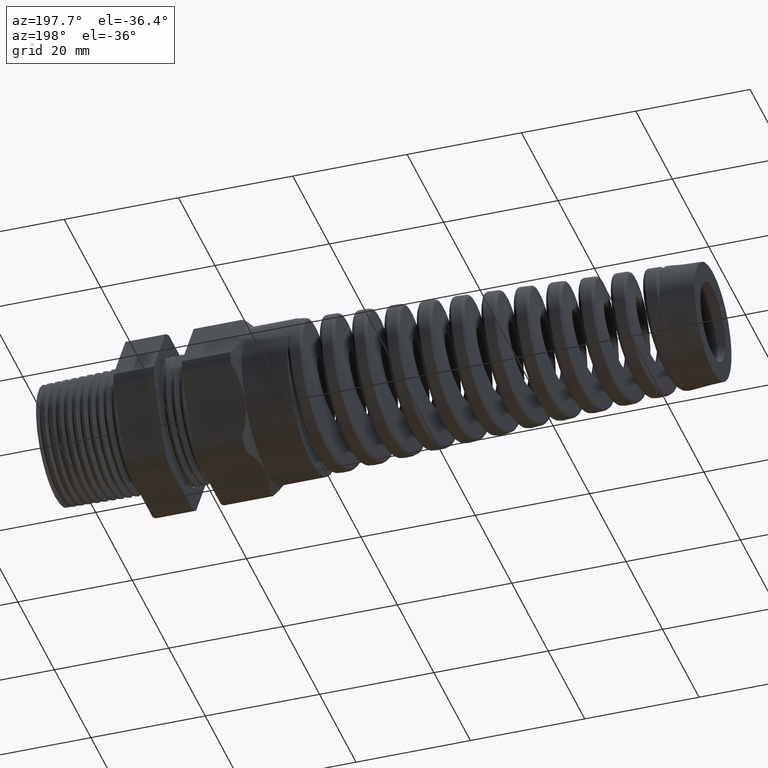
[diagram: clean part render]
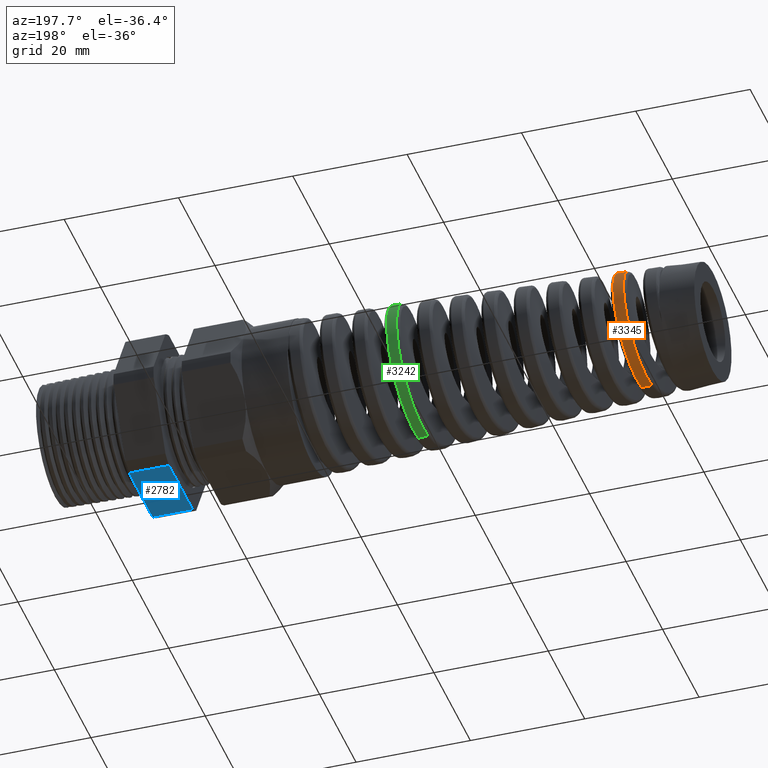
[diagram: same view with three faces highlighted in distinct colors, each labeled with its STEP entity id]
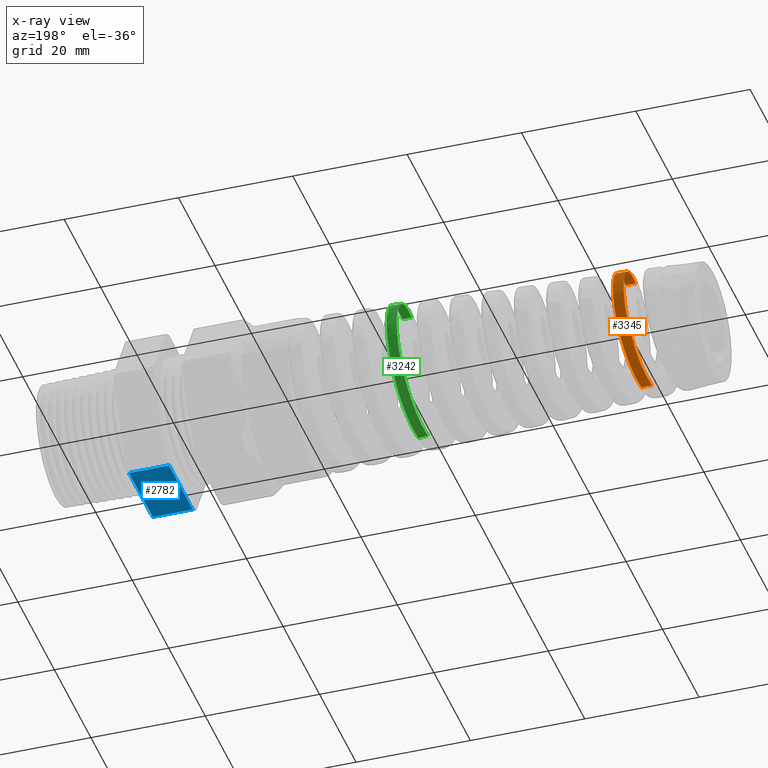
[diagram: x-ray of the same camera — body ghosted, the three highlighted faces saturated]
A machine part, auxiliary view with three faces highlighted in distinct colors.
The next image is the same camera in x-ray (body ghosted, the three faces saturated) — at least one of them is partly hidden behind the body in this view.
Their STEP definitions:

[orange] entity #3345 — the highlighted conical surface has half-angle 2.5 deg.
#1628 = DIRECTION ( 'NONE',  ( 0.9990482215818576900, 0.0000000000000000000, -0.04361938736533629800 ) ) ;
#1629 = VECTOR ( 'NONE', #1628, 39.37007874015748100 ) ;
#1630 = CARTESIAN_POINT ( 'NONE',  ( -1.409999999999999900, 0.0000000000000000000, -0.5300000000000000300 ) ) ;
#1631 = LINE ( 'NONE', #1630, #1629 ) ;
#1632 = CARTESIAN_POINT ( 'NONE',  ( -3.758332060745155400, 4.795377097128828500E-016, -0.4274696079655765900 ) ) ;
#1633 = CARTESIAN_POINT ( 'NONE',  ( -3.757188375584939300, 0.01400494226474427300, -0.4275195423380621600 ) ) ;
#1634 = CARTESIAN_POINT ( 'NONE',  ( -3.756043893642880600, 0.02802619152402364600, -0.4268829494566397900 ) ) ;
#1635 = CARTESIAN_POINT ( 'NONE',  ( -3.753740690579493200, 0.05610092792465391800, -0.4242089211008324700 ) ) ;
#1636 = CARTESIAN_POINT ( 'NONE',  ( -3.752576914043245400, 0.07021414439298170900, -0.4221540205707369800 ) ) ;
#1637 = CARTESIAN_POINT ( 'NONE',  ( -3.749118222706081700, 0.1117275020499396000, -0.4139889844316627700 ) ) ;
#1638 = CARTESIAN_POINT ( 'NONE',  ( -3.746835861285643600, 0.1385445949005433800, -0.4058987860999186400 ) ) ;
#1639 = CARTESIAN_POINT ( 'NONE',  ( -3.742241801992131300, 0.1904787648338106000, -0.3844970683892806600 ) ) ;
#1640 = CARTESIAN_POINT ( 'NONE',  ( -3.648503693373831100, -5.087926670709558600E-013, 0.4322648180431111200 ) ) ;
#1641 = DIRECTION ( 'NONE',  ( 0.9990482215818576900, 5.341834311772759500E-018, 0.04361938736533629800 ) ) ;
#1642 = VECTOR ( 'NONE', #1641, 39.37007874015748100 ) ;
#1643 = CARTESIAN_POINT ( 'NONE',  ( -1.409999999999999900, 6.490628035480972400E-017, 0.5300000000000000300 ) ) ;
#1648 = LINE ( 'NONE', #1643, #1642 ) ;
#1781 = CARTESIAN_POINT ( 'NONE',  ( -3.739917816255521100, 0.2157471594129809500, -0.3710240535705322500 ) ) ;
#1782 = CARTESIAN_POINT ( 'NONE',  ( -3.735344502820534500, 0.2624260536067194400, -0.3398666247093832200 ) ) ;
#1783 = CARTESIAN_POINT ( 'NONE',  ( -3.733072657904383400, 0.2841050086479168200, -0.3221129474856678200 ) ) ;
#1784 = CARTESIAN_POINT ( 'NONE',  ( -3.729615309461891600, 0.3140793900132024500, -0.2921599076022851600 ) ) ;
#1785 = CARTESIAN_POINT ( 'NONE',  ( -3.728453298973669000, 0.3236472924899924700, -0.2815989575546020100 ) ) ;
#1786 = CARTESIAN_POINT ( 'NONE',  ( -3.726153618718246000, 0.3415035080814128300, -0.2598211116389071400 ) ) ;
#1787 = CARTESIAN_POINT ( 'NONE',  ( -3.725009520114248100, 0.3498499346382711300, -0.2485504226437828000 ) ) ;
#1788 = CARTESIAN_POINT ( 'NONE',  ( -3.722724268780486700, 0.3653987721470649000, -0.2252590277197482900 ) ) ;
#1789 = CARTESIAN_POINT ( 'NONE',  ( -3.721583710699166900, 0.3726011699495063200, -0.2132382549282643100 ) ) ;
#1790 = CARTESIAN_POINT ( 'NONE',  ( -3.719295051641162700, 0.3858481658929770500, -0.1884386864190324100 ) ) ;
#1791 = CARTESIAN_POINT ( 'NONE',  ( -3.718141421412132400, 0.3919172389564312700, -0.1755987723137358300 ) ) ;
#1792 = CARTESIAN_POINT ( 'NONE',  ( -3.714687168139751500, 0.4081381000362646100, -0.1363389476519790100 ) ) ;
#1793 = CARTESIAN_POINT ( 'NONE',  ( -3.712418102474486700, 0.4162280755016341000, -0.1094906349767144800 ) ) ;
#1794 = CARTESIAN_POINT ( 'NONE',  ( -3.708993960485652300, 0.4244008289815005600, -0.06824204473662713600 ) ) ;
#1795 = CARTESIAN_POINT ( 'NONE',  ( -3.707849349613552300, 0.4264599524141913800, -0.05432863686403405200 ) ) ;
#1796 = CARTESIAN_POINT ( 'NONE',  ( -3.705543389308517000, 0.4292104135989933700, -0.02616566908292389900 ) ) ;
#1797 = CARTESIAN_POINT ( 'NONE',  ( -3.704385766185676100, 0.4298886154163139600, -0.01196145936708104900 ) ) ;
#1798 = CARTESIAN_POINT ( 'NONE',  ( -3.700950411913653600, 0.4298321897530453200, 0.03023193763143227100 ) ) ;
#1799 = CARTESIAN_POINT ( 'NONE',  ( -3.698688486946650800, 0.4270597684995762800, 0.05809926371948792600 ) ) ;
#1800 = CARTESIAN_POINT ( 'NONE',  ( -3.695262527601237400, 0.4187954250325983100, 0.09950130942634578800 ) ) ;
#1801 = CARTESIAN_POINT ( 'NONE',  ( -3.694108612457400700, 0.4153264782651214200, 0.1133101384732015500 ) ) ;
#1802 = CARTESIAN_POINT ( 'NONE',  ( -3.691813322155643300, 0.4070889725745487400, 0.1403570049329315500 ) ) ;
#1803 = CARTESIAN_POINT ( 'NONE',  ( -3.690672918861830800, 0.4023335954714611900, 0.1535857487082038500 ) ) ;
#1804 = CARTESIAN_POINT ( 'NONE',  ( -3.687256377679482900, 0.3862083247515442600, 0.1924099124701051700 ) ) ;
#1805 = CARTESIAN_POINT ( 'NONE',  ( -3.684984373050861400, 0.3729971094822205300, 0.2171514826718438100 ) ) ;
#1806 = CARTESIAN_POINT ( 'NONE',  ( -3.681530814125457700, 0.3493672774588949500, 0.2524908151231820000 ) ) ;
#1807 = CARTESIAN_POINT ( 'NONE',  ( -3.680382163118776100, 0.3409108092610608200, 0.2638726836127053800 ) ) ;
#1808 = CARTESIAN_POINT ( 'NONE',  ( -3.678104548063549900, 0.3230702625579756100, 0.2855876097024513400 ) ) ;
#1809 = CARTESIAN_POINT ( 'NONE',  ( -3.675838010205122200, 0.3042434383986213400, 0.3063425763650677900 ) ) ;
#1810 = CARTESIAN_POINT ( 'NONE',  ( -3.673568734738377200, 0.2834667302174873100, 0.3251968889773007000 ) ) ;
#1811 = CARTESIAN_POINT ( 'NONE',  ( -3.671286080478709300, 0.2616985560708539600, 0.3430834049696673300 ) ) ;
#1812 = CARTESIAN_POINT ( 'NONE',  ( -3.670131903133830900, 0.2502535291070065400, 0.3515819780505617900 ) ) ;
#1813 = CARTESIAN_POINT ( 'NONE',  ( -3.666696480422178000, 0.2150445032810982800, 0.3751266350432231300 ) ) ;
#1814 = CARTESIAN_POINT ( 'NONE',  ( -3.664431451292233400, 0.1903403971790234300, 0.3883429273141322800 ) ) ;
#1815 = CARTESIAN_POINT ( 'NONE',  ( -3.659881890005455900, 0.1385208373324138500, 0.4099062885049016800 ) ) ;
#1816 = CARTESIAN_POINT ( 'NONE',  ( -3.657578996436924100, 0.1111347924308908200, 0.4182681830663149700 ) ) ;
#1817 = CARTESIAN_POINT ( 'NONE',  ( -3.653039765616004100, 0.05606596227446204000, 0.4293332549060776000 ) ) ;
#1818 = CARTESIAN_POINT ( 'NONE',  ( -3.650786333604422400, 0.02819922231569264900, 0.4321651558183558500 ) ) ;
#1819 = CARTESIAN_POINT ( 'NONE',  ( -3.648503693373831100, -5.087926670709558600E-013, 0.4322648180431111200 ) ) ;
#1820 = B_SPLINE_CURVE_WITH_KNOTS ( 'NONE', 3,
 ( #1819, #1818, #1817, #1816, #1815, #1814, #1813, #1812, #1811, #1810, #1809, #1808, #1807, #1806, #1805, #1804, #1803, #1802, #1801, #1800, #1799, #1798, #1797, #1796, #1795, #1794, #1793, #1792, #1791, #1790, #1789, #1788, #1787, #1786, #1785, #1784, #1783, #1782, #1781, #1639, #1638, #1637, #1636, #1635, #1634, #1633, #1632 ),
 .UNSPECIFIED., .F., .F.,
 ( 4, 2, 2, 2, 2, 1, 2, 2, 2, 2, 2, 2, 2, 2, 2, 2, 2, 2, 2, 2, 2, 2, 2, 4 ),
 ( 0.7607264574887501200, 0.7628929269226795200, 0.7650593963566089100, 0.7672258657905383100, 0.7683091005075030100, 0.7693923352244677000, 0.7704755699414322900, 0.7715588046583969900, 0.7737252740923263900, 0.7748085088092910900, 0.7758917435262557800, 0.7780582129601851800, 0.7791414476771498800, 0.7802246823941145800, 0.7823911518280439700, 0.7834743865450086700, 0.7845576212619733700, 0.7856408559789380700, 0.7867240906959026600, 0.7888905601298320500, 0.7910570295637614500, 0.7932234989976908500, 0.7943067337146555400, 0.7953899684316202400 ),
 .UNSPECIFIED. ) ;
#1821 = CARTESIAN_POINT ( 'NONE',  ( -3.758332060745155400, 4.795377097128828500E-016, -0.4274696079655765900 ) ) ;
#2238 = DIRECTION ( 'NONE',  ( 0.0000000000000000000, 0.0000000000000000000, -1.000000000000000000 ) ) ;
#2239 = DIRECTION ( 'NONE',  ( 1.000000000000000000, 0.0000000000000000000, 0.0000000000000000000 ) ) ;
#2240 = CARTESIAN_POINT ( 'NONE',  ( -1.409999999999999900, 0.0000000000000000000, 0.0000000000000000000 ) ) ;
#2241 = AXIS2_PLACEMENT_3D ( 'NONE', #2240, #2239, #2238 ) ;
#2360 = CONICAL_SURFACE ( 'NONE', #2241, 0.5300000000000000300, 0.04363323129985853500 ) ;
#2361 = FACE_OUTER_BOUND ( 'NONE', #3346, .T. ) ;
#3089 = EDGE_CURVE ( 'NONE', #3090, #3091, #14632, .T. ) ;
#3090 = VERTEX_POINT ( 'NONE', #14633 ) ;
#3091 = VERTEX_POINT ( 'NONE', #14631 ) ;
#3092 = ORIENTED_EDGE ( 'NONE', *, *, #3233, .T. ) ;
#3233 = EDGE_CURVE ( 'NONE', #3091, #3234, #1648, .T. ) ;
#3234 = VERTEX_POINT ( 'NONE', #1640 ) ;
#3235 = ORIENTED_EDGE ( 'NONE', *, *, #3236, .T. ) ;
#3236 = EDGE_CURVE ( 'NONE', #3234, #3237, #1820, .T. ) ;
#3237 = VERTEX_POINT ( 'NONE', #1821 ) ;
#3238 = ORIENTED_EDGE ( 'NONE', *, *, #3239, .F. ) ;
#3239 = EDGE_CURVE ( 'NONE', #3090, #3237, #1631, .T. ) ;
#3345 = ADVANCED_FACE ( 'NONE', ( #2361 ), #2360, .T. ) ;
#3346 = EDGE_LOOP ( 'NONE', ( #3347, #3092, #3235, #3238 ) ) ;
#3347 = ORIENTED_EDGE ( 'NONE', *, *, #3089, .T. ) ;
#14584 = CARTESIAN_POINT ( 'NONE',  ( -3.720578933389992600, 2.741245208537216600E-015, 0.4291179451036481500 ) ) ;
#14585 = CARTESIAN_POINT ( 'NONE',  ( -3.722848030818363800, 0.02780601998158386800, 0.4290188741703739300 ) ) ;
#14586 = CARTESIAN_POINT ( 'NONE',  ( -3.725115342637311100, 0.05558634904280819500, 0.4262351315204491700 ) ) ;
#14587 = CARTESIAN_POINT ( 'NONE',  ( -3.729723282317614100, 0.1108309665472095900, 0.4151026146289127400 ) ) ;
#14588 = CARTESIAN_POINT ( 'NONE',  ( -3.731995388368236200, 0.1374648769303165300, 0.4069294730580014800 ) ) ;
#14589 = CARTESIAN_POINT ( 'NONE',  ( -3.735414957804352700, 0.1759846297524953500, 0.3909085493472986300 ) ) ;
#14590 = CARTESIAN_POINT ( 'NONE',  ( -3.736556287390140300, 0.1885843355614548700, 0.3849368210127900300 ) ) ;
#14591 = CARTESIAN_POINT ( 'NONE',  ( -3.738850289786021600, 0.2132912584537520800, 0.3717007360408454700 ) ) ;
#14592 = CARTESIAN_POINT ( 'NONE',  ( -3.740006295424410900, 0.2254221815599011000, 0.3644110385542040400 ) ) ;
#14593 = CARTESIAN_POINT ( 'NONE',  ( -3.743437320553423500, 0.2602821829579215500, 0.3410605169099576500 ) ) ;
#14594 = CARTESIAN_POINT ( 'NONE',  ( -3.745700110118714800, 0.2817607823418232800, 0.3234055908847338100 ) ) ;
#14595 = CARTESIAN_POINT ( 'NONE',  ( -3.749129096484213000, 0.3113512413863248600, 0.2938178201556894100 ) ) ;
#14596 = CARTESIAN_POINT ( 'NONE',  ( -3.750281889693358700, 0.3208052745392686000, 0.2833951435450278700 ) ) ;
#14597 = CARTESIAN_POINT ( 'NONE',  ( -3.752591664009485400, 0.3386538993013153400, 0.2616411461022035100 ) ) ;
#14598 = CARTESIAN_POINT ( 'NONE',  ( -3.753738565991543700, 0.3469742566959341200, 0.2504086280653811700 ) ) ;
#14599 = CARTESIAN_POINT ( 'NONE',  ( -3.757169300187687400, 0.3701783565139289400, 0.2156780962292918500 ) ) ;
#14600 = CARTESIAN_POINT ( 'NONE',  ( -3.759439495632646000, 0.3833218598895488700, 0.1911565832445638900 ) ) ;
#14601 = CARTESIAN_POINT ( 'NONE',  ( -3.762888927047209900, 0.3994604156784011300, 0.1522776238457922700 ) ) ;
#14602 = CARTESIAN_POINT ( 'NONE',  ( -3.764045967617254600, 0.4042276096463054400, 0.1389686977490640600 ) ) ;
#14603 = CARTESIAN_POINT ( 'NONE',  ( -3.766337269576340400, 0.4123482883393500600, 0.1122304767726819300 ) ) ;
#14604 = CARTESIAN_POINT ( 'NONE',  ( -3.768618695133686600, 0.4191197897054382300, 0.08522787332077001700 ) ) ;
#14605 = CARTESIAN_POINT ( 'NONE',  ( -3.770903469669996300, 0.4232330187760735000, 0.05770627723356586100 ) ) ;
#14606 = CARTESIAN_POINT ( 'NONE',  ( -3.773200334372250400, 0.4259990941174262600, 0.02992254102867182900 ) ) ;
#14607 = CARTESIAN_POINT ( 'NONE',  ( -3.774360731507543100, 0.4267074884294839700, 0.01582751631322160800 ) ) ;
#14608 = CARTESIAN_POINT ( 'NONE',  ( -3.777829366544581900, 0.4267317914785385700, -0.02631659949038361900 ) ) ;
#14609 = CARTESIAN_POINT ( 'NONE',  ( -3.780104441073842500, 0.4239997174405346600, -0.05401370538931693500 ) ) ;
#14610 = CARTESIAN_POINT ( 'NONE',  ( -3.783532929714850100, 0.4158905599938346200, -0.09497120074621227800 ) ) ;
#14611 = CARTESIAN_POINT ( 'NONE',  ( -3.784678577405374200, 0.4125142159558102300, -0.1085249576956297100 ) ) ;
#14612 = CARTESIAN_POINT ( 'NONE',  ( -3.786988306060985900, 0.4043747243778840200, -0.1354280361775116200 ) ) ;
#14613 = CARTESIAN_POINT ( 'NONE',  ( -3.788146694473905300, 0.3996246256221083800, -0.1487078245555345200 ) ) ;
#14614 = CARTESIAN_POINT ( 'NONE',  ( -3.791593186162679700, 0.3836058008056218400, -0.1873942939380680300 ) ) ;
#14615 = CARTESIAN_POINT ( 'NONE',  ( -3.793875612724753000, 0.3705104428978230300, -0.2119181681654594100 ) ) ;
#14616 = CARTESIAN_POINT ( 'NONE',  ( -3.797333615227934400, 0.3472280994294973900, -0.2467900470955413400 ) ) ;
#14617 = CARTESIAN_POINT ( 'NONE',  ( -3.798497819345617400, 0.3388040978168611600, -0.2581521624735956800 ) ) ;
#14618 = CARTESIAN_POINT ( 'NONE',  ( -3.800807165242161100, 0.3210003949947681200, -0.2798279183853296700 ) ) ;
#14619 = CARTESIAN_POINT ( 'NONE',  ( -3.801953526874092500, 0.3116229859337744100, -0.2901554526424506300 ) ) ;
#14620 = CARTESIAN_POINT ( 'NONE',  ( -3.805387138246730100, 0.2820997079214503400, -0.3196429632999414600 ) ) ;
#14621 = CARTESIAN_POINT ( 'NONE',  ( -3.807668931483131600, 0.2605762958817231000, -0.3373223700059581100 ) ) ;
#14622 = CARTESIAN_POINT ( 'NONE',  ( -3.812315515235074500, 0.2137119466621694200, -0.3685662236027386600 ) ) ;
#14623 = CARTESIAN_POINT ( 'NONE',  ( -3.814615721638427100, 0.1890234602669793600, -0.3816787256720782800 ) ) ;
#14624 = CARTESIAN_POINT ( 'NONE',  ( -3.818062306546799800, 0.1504612706813865700, -0.3975703456160632500 ) ) ;
#14625 = CARTESIAN_POINT ( 'NONE',  ( -3.819211163027164300, 0.1373352677522180800, -0.4022434886857347800 ) ) ;
#14626 = CARTESIAN_POINT ( 'NONE',  ( -3.821520555335665500, 0.1105288861516624000, -0.4103151322357948000 ) ) ;
#14627 = CARTESIAN_POINT ( 'NONE',  ( -3.822686451519887700, 0.09678617351417297100, -0.4137202449011717600 ) ) ;
#14628 = CARTESIAN_POINT ( 'NONE',  ( -3.826150176095001900, 0.05556464103283983300, -0.4217869648721843700 ) ) ;
#14629 = CARTESIAN_POINT ( 'NONE',  ( -3.828433504350723800, 0.02788061858970472900, -0.4244089128385552500 ) ) ;
#14630 = CARTESIAN_POINT ( 'NONE',  ( -3.830738846142130300, -6.982901073031880300E-013, -0.4243082594421703800 ) ) ;
#14631 = CARTESIAN_POINT ( 'NONE',  ( -3.720578933389992600, 2.741245208537216600E-015, 0.4291179451036481500 ) ) ;
#14632 = B_SPLINE_CURVE_WITH_KNOTS ( 'NONE', 3,
 ( #14630, #14629, #14628, #14627, #14626, #14625, #14624, #14623, #14622, #14621, #14620, #14619, #14618, #14617, #14616, #14615, #14614, #14613, #14612, #14611, #14610, #14609, #14608, #14607, #14606, #14605, #14604, #14603, #14602, #14601, #14600, #14599, #14598, #14597, #14596, #14595, #14594, #14593, #14592, #14591, #14590, #14589, #14588, #14587, #14586, #14585, #14584 ),
 .UNSPECIFIED., .F., .F.,
 ( 4, 2, 2, 2, 2, 2, 2, 2, 2, 2, 2, 2, 2, 1, 2, 2, 2, 2, 2, 2, 2, 2, 2, 4 ),
 ( 0.05642855409053696600, 0.05858432379721361500, 0.05966220865055194000, 0.06074009350389026500, 0.06289586321056692100, 0.06505163291724355700, 0.06612951777058188900, 0.06720740262392022000, 0.06936317233059687000, 0.07044105718393520200, 0.07151894203727352000, 0.07367471174395018300, 0.07475259659728850100, 0.07583048145062681900, 0.07690836630396515100, 0.07798625115730348200, 0.08014202086398013200, 0.08121990571731846400, 0.08229779057065678100, 0.08445356027733341700, 0.08553144513067173500, 0.08660932998401005300, 0.08876509969068668800, 0.09092086939736332400 ),
 .UNSPECIFIED. ) ;
#14633 = CARTESIAN_POINT ( 'NONE',  ( -3.830738846142130300, -6.982901073031880300E-013, -0.4243082594421703800 ) ) ;

[blue] entity #2782 — the highlighted planar face has unit normal (0, 0, -1).
#156 = CARTESIAN_POINT ( 'NONE',  ( -0.5855905511811022600, -0.2553368167734529900, -0.5300000000000001400 ) ) ;
#157 = DIRECTION ( 'NONE',  ( 0.0000000000000000000, -1.000000000000000000, 0.0000000000000000000 ) ) ;
#158 = VECTOR ( 'NONE', #157, 39.37007874015748100 ) ;
#159 = CARTESIAN_POINT ( 'NONE',  ( -0.5855905511811022600, 1.059999999999999800, -0.5300000000000001400 ) ) ;
#160 = LINE ( 'NONE', #159, #158 ) ;
#2584 = VERTEX_POINT ( 'NONE', #4574 ) ;
#2692 = EDGE_CURVE ( 'NONE', #4520, #2584, #5917, .T. ) ;
#2694 = ORIENTED_EDGE ( 'NONE', *, *, #2826, .T. ) ;
#2782 = ADVANCED_FACE ( 'NONE', ( #12060 ), #12062, .T. ) ;
#2783 = ORIENTED_EDGE ( 'NONE', *, *, #4512, .F. ) ;
#2825 = EDGE_LOOP ( 'NONE', ( #2694, #2827, #2837, #2783 ) ) ;
#2826 = EDGE_CURVE ( 'NONE', #4519, #6691, #12122, .T. ) ;
#2827 = ORIENTED_EDGE ( 'NONE', *, *, #6690, .F. ) ;
#2837 = ORIENTED_EDGE ( 'NONE', *, *, #2692, .F. ) ;
#4512 = EDGE_CURVE ( 'NONE', #4519, #4520, #18804, .T. ) ;
#4519 = VERTEX_POINT ( 'NONE', #18793 ) ;
#4520 = VERTEX_POINT ( 'NONE', #18792 ) ;
#4574 = CARTESIAN_POINT ( 'NONE',  ( -0.5855905511811022600, 0.2553368167734530500, -0.5300000000000001400 ) ) ;
#5914 = DIRECTION ( 'NONE',  ( -1.000000000000000000, 0.0000000000000000000, 0.0000000000000000000 ) ) ;
#5915 = VECTOR ( 'NONE', #5914, 39.37007874015748100 ) ;
#5916 = CARTESIAN_POINT ( 'NONE',  ( 0.2799999999999998600, 0.2553368167734530500, -0.5300000000000001400 ) ) ;
#5917 = LINE ( 'NONE', #5916, #5915 ) ;
#6690 = EDGE_CURVE ( 'NONE', #2584, #6691, #160, .T. ) ;
#6691 = VERTEX_POINT ( 'NONE', #156 ) ;
#12051 = DIRECTION ( 'NONE',  ( -1.000000000000000000, 0.0000000000000000000, 0.0000000000000000000 ) ) ;
#12052 = DIRECTION ( 'NONE',  ( 0.0000000000000000000, 0.0000000000000000000, -1.000000000000000000 ) ) ;
#12053 = CARTESIAN_POINT ( 'NONE',  ( 0.2799999999999998600, 0.2553368167734529900, -0.5300000000000001400 ) ) ;
#12054 = AXIS2_PLACEMENT_3D ( 'NONE', #12053, #12052, #12051 ) ;
#12060 = FACE_OUTER_BOUND ( 'NONE', #2825, .T. ) ;
#12062 = PLANE ( 'NONE',  #12054 ) ;
#12119 = DIRECTION ( 'NONE',  ( -1.000000000000000000, 0.0000000000000000000, 0.0000000000000000000 ) ) ;
#12120 = VECTOR ( 'NONE', #12119, 39.37007874015748100 ) ;
#12121 = CARTESIAN_POINT ( 'NONE',  ( 0.2799999999999998600, -0.2553368167734529900, -0.5300000000000001400 ) ) ;
#12122 = LINE ( 'NONE', #12121, #12120 ) ;
#18792 = CARTESIAN_POINT ( 'NONE',  ( -0.3100000000000000000, 0.2553368167734530500, -0.5300000000000001400 ) ) ;
#18793 = CARTESIAN_POINT ( 'NONE',  ( -0.3100000000000000000, -0.2553368167734529900, -0.5300000000000001400 ) ) ;
#18801 = DIRECTION ( 'NONE',  ( 0.0000000000000000000, 1.000000000000000000, 0.0000000000000000000 ) ) ;
#18802 = VECTOR ( 'NONE', #18801, 39.37007874015748100 ) ;
#18803 = CARTESIAN_POINT ( 'NONE',  ( -0.3100000000000000000, 1.060000000000000100, -0.5300000000000001400 ) ) ;
#18804 = LINE ( 'NONE', #18803, #18802 ) ;

[green] entity #3242 — the highlighted conical surface has half-angle 2.5 deg.
#870 = CARTESIAN_POINT ( 'NONE',  ( -2.197682511199851700, 0.3028830052043617300, -0.3926257720300331800 ) ) ;
#872 = CARTESIAN_POINT ( 'NONE',  ( -2.195389921035567800, 0.3280489600058355500, -0.3719895417475080900 ) ) ;
#875 = CARTESIAN_POINT ( 'NONE',  ( -2.198841991206284400, 0.2896521453267154000, -0.4024261826260574500 ) ) ;
#881 = CARTESIAN_POINT ( 'NONE',  ( -2.218348346401215500, 0.03259454002942924900, -0.4947067489975860400 ) ) ;
#886 = CARTESIAN_POINT ( 'NONE',  ( -2.208024716337369900, 0.1752730125845515000, -0.4633824622169541700 ) ) ;
#893 = CARTESIAN_POINT ( 'NONE',  ( -2.212639623273569900, 0.1126464314979600100, -0.4822406286032560600 ) ) ;
#907 = CARTESIAN_POINT ( 'NONE',  ( -2.204587297530354700, 0.2202479588382298700, -0.4448285202942156000 ) ) ;
#908 = CARTESIAN_POINT ( 'NONE',  ( -2.202304849745374300, 0.2488553129674497000, -0.4296132806030581500 ) ) ;
#909 = CARTESIAN_POINT ( 'NONE',  ( -2.220655334731331400, 6.252609506212735700E-016, -0.4946060237118143900 ) ) ;
#910 = CARTESIAN_POINT ( 'NONE',  ( -2.211486198977961900, 0.1285437635576542300, -0.4783058578771152700 ) ) ;
#913 = CARTESIAN_POINT ( 'NONE',  ( -2.209172987976576700, 0.1599349238308562500, -0.4688505214420778900 ) ) ;
#924 = CARTESIAN_POINT ( 'NONE',  ( -2.216075617160237200, 0.06483038000053863200, -0.4916148807988349700 ) ) ;
#1617 = DIRECTION ( 'NONE',  ( 0.0000000000000000000, 0.0000000000000000000, -1.000000000000000000 ) ) ;
#1618 = DIRECTION ( 'NONE',  ( 1.000000000000000000, 0.0000000000000000000, 0.0000000000000000000 ) ) ;
#1619 = CARTESIAN_POINT ( 'NONE',  ( -1.409999999999999900, 0.0000000000000000000, 0.0000000000000000000 ) ) ;
#1620 = AXIS2_PLACEMENT_3D ( 'NONE', #1619, #1618, #1617 ) ;
#1621 = CONICAL_SURFACE ( 'NONE', #1620, 0.5300000000000000300, 0.04363323129985853500 ) ;
#1622 = CARTESIAN_POINT ( 'NONE',  ( -2.288402788874464500, -6.313141236438867800E-013, -0.4916481059842740000 ) ) ;
#1623 = FACE_OUTER_BOUND ( 'NONE', #3243, .T. ) ;
#1703 = CARTESIAN_POINT ( 'NONE',  ( -2.193110605145363500, 0.3520757331139871500, -0.3502197535905387000 ) ) ;
#1704 = CARTESIAN_POINT ( 'NONE',  ( -2.190831741080857800, 0.3738584383417429300, -0.3262195401363173200 ) ) ;
#1705 = CARTESIAN_POINT ( 'NONE',  ( -2.188540838316603800, 0.3945038181206369000, -0.3010901396520293000 ) ) ;
#1706 = CARTESIAN_POINT ( 'NONE',  ( -2.187383292598345600, 0.4043045011278510500, -0.2878883560657822800 ) ) ;
#1707 = CARTESIAN_POINT ( 'NONE',  ( -2.183921739831009600, 0.4315623920318130100, -0.2470798861514626500 ) ) ;
#1708 = CARTESIAN_POINT ( 'NONE',  ( -2.181642505756969300, 0.4468114961012492100, -0.2184801256804437000 ) ) ;
#1709 = CARTESIAN_POINT ( 'NONE',  ( -2.178214587893520200, 0.4654190251475586700, -0.1735496196851825900 ) ) ;
#1710 = CARTESIAN_POINT ( 'NONE',  ( -2.177071197517642000, 0.4709053845945421200, -0.1582318046652227700 ) ) ;
#1711 = CARTESIAN_POINT ( 'NONE',  ( -2.174769000507025900, 0.4804026723523838200, -0.1268947675296451500 ) ) ;
#1712 = CARTESIAN_POINT ( 'NONE',  ( -2.173616945179712300, 0.4843777080240671000, -0.1109653660345067000 ) ) ;
#1713 = CARTESIAN_POINT ( 'NONE',  ( -2.170190911222746000, 0.4938522049713476300, -0.06313595312945956300 ) ) ;
#1714 = CARTESIAN_POINT ( 'NONE',  ( -2.167925473109802800, 0.4970136813264475200, -0.03091098765270057500 ) ) ;
#1715 = CARTESIAN_POINT ( 'NONE',  ( -2.164486047912060200, 0.4970016035396790900, 0.01793193509696186500 ) ) ;
#1716 = CARTESIAN_POINT ( 'NONE',  ( -2.163326418105585800, 0.4961870197301860300, 0.03438817121193984300 ) ) ;
#1717 = CARTESIAN_POINT ( 'NONE',  ( -2.161025046815565200, 0.4929602138711566300, 0.06688977187125012800 ) ) ;
#1718 = CARTESIAN_POINT ( 'NONE',  ( -2.159881913707844900, 0.4905585926200268200, 0.08295542227099468600 ) ) ;
#1719 = CARTESIAN_POINT ( 'NONE',  ( -2.156463679085574000, 0.4810467948303423500, 0.1306096883728997700 ) ) ;
#1720 = CARTESIAN_POINT ( 'NONE',  ( -2.154200415191198600, 0.4716518818381442700, 0.1616608973756783800 ) ) ;
#1721 = CARTESIAN_POINT ( 'NONE',  ( -2.149598750283741900, 0.4465284396718383600, 0.2222657143886334100 ) ) ;
#1722 = CARTESIAN_POINT ( 'NONE',  ( -2.147325066731232500, 0.4311438866624131000, 0.2509504301318713500 ) ) ;
#1723 = CARTESIAN_POINT ( 'NONE',  ( -2.143910266321926700, 0.4041585141194918900, 0.2913400481506449600 ) ) ;
#1724 = CARTESIAN_POINT ( 'NONE',  ( -2.142770199218616800, 0.3944997203182135600, 0.3043783941916401400 ) ) ;
#1725 = CARTESIAN_POINT ( 'NONE',  ( -2.140477236765221800, 0.3738285997188045600, 0.3295878304819134800 ) ) ;
#1726 = CARTESIAN_POINT ( 'NONE',  ( -2.139319104393871700, 0.3627590098141398900, 0.3418077077022617100 ) ) ;
#1727 = CARTESIAN_POINT ( 'NONE',  ( -2.135884563377203900, 0.3281652582607141900, 0.3764060486012982800 ) ) ;
#1728 = CARTESIAN_POINT ( 'NONE',  ( -2.133629216207914700, 0.3031318391516581400, 0.3969549311246279300 ) ) ;
#1729 = CARTESIAN_POINT ( 'NONE',  ( -2.129083051338108500, 0.2491868266407235600, 0.4330888488580920700 ) ) ;
#1730 = CARTESIAN_POINT ( 'NONE',  ( -2.126773948873429600, 0.2200059330650293000, 0.4487283639957697600 ) ) ;
#1731 = CARTESIAN_POINT ( 'NONE',  ( -2.122219002720473500, 0.1600736206461070300, 0.4736397248053178000 ) ) ;
#1732 = CARTESIAN_POINT ( 'NONE',  ( -2.119952949669157100, 0.1291006355299158500, 0.4831169916334726600 ) ) ;
#1733 = CARTESIAN_POINT ( 'NONE',  ( -2.116523119255968100, 0.08110869440529891400, 0.4927889385248586100 ) ) ;
#1734 = CARTESIAN_POINT ( 'NONE',  ( -2.115371427453514500, 0.06480819939953824700, 0.4952461577539006800 ) ) ;
#1735 = CARTESIAN_POINT ( 'NONE',  ( -2.113093493208396000, 0.03239007369024769100, 0.4985168509531309200 ) ) ;
#1736 = CARTESIAN_POINT ( 'NONE',  ( -2.111961368889924800, 0.01619027378867523800, 0.4993517047489157700 ) ) ;
#1737 = CARTESIAN_POINT ( 'NONE',  ( -2.110829736817127600, -1.594109210091734600E-015, 0.4994011128722397100 ) ) ;
#1738 = B_SPLINE_CURVE_WITH_KNOTS ( 'NONE', 3,
 ( #1737, #1736, #1735, #1734, #1733, #1732, #1731, #1730, #1729, #1728, #1727, #1726, #1725, #1724, #1723, #1722, #1721, #1720, #1719, #1718, #1717, #1716, #1715, #1714, #1713, #1712, #1711, #1710, #1709, #1708, #1707, #1706, #1705, #1704, #1703, #872, #870, #875, #908, #907, #886, #913, #910, #893, #924, #881, #909 ),
 .UNSPECIFIED., .F., .F.,
 ( 4, 2, 2, 2, 2, 2, 2, 2, 2, 2, 2, 2, 2, 2, 2, 2, 2, 1, 2, 2, 2, 2, 2, 4 ),
 ( 0.2347227303758080400, 0.2359758350158077700, 0.2372289396558074900, 0.2397351489358069700, 0.2422413582158064200, 0.2447475674958058700, 0.2460006721358055900, 0.2472537767758053200, 0.2497599860558047700, 0.2522661953358042400, 0.2535192999758039700, 0.2547724046158036900, 0.2572786138958031400, 0.2585317185358028700, 0.2597848231758025900, 0.2622910324558020400, 0.2635441370958017700, 0.2647972417358014900, 0.2660503463758012700, 0.2673034510158010000, 0.2698096602958004500, 0.2710627649358001700, 0.2723158695757999000, 0.2748220788557993500 ),
 .UNSPECIFIED. ) ;
#1739 = CARTESIAN_POINT ( 'NONE',  ( -2.110829736817127600, -1.594109210091734600E-015, 0.4994011128722397100 ) ) ;
#1743 = CARTESIAN_POINT ( 'NONE',  ( -2.261897783061876100, 0.3380935842650170700, -0.3588996632668028400 ) ) ;
#1744 = CARTESIAN_POINT ( 'NONE',  ( -2.263045870687074400, 0.3261360349822081700, -0.3697377997621780200 ) ) ;
#1745 = CARTESIAN_POINT ( 'NONE',  ( -2.265358155047905200, 0.3010525308054189900, -0.3903058340278936500 ) ) ;
#1746 = CARTESIAN_POINT ( 'NONE',  ( -2.266525829678453200, 0.2878811486405690200, -0.4000558742817196800 ) ) ;
#1747 = CARTESIAN_POINT ( 'NONE',  ( -2.269991072112964100, 0.2474503263169250700, -0.4269969272723123100 ) ) ;
#1748 = CARTESIAN_POINT ( 'NONE',  ( -2.272270646849597200, 0.2190393185375799100, -0.4421263316220785900 ) ) ;
#1749 = CARTESIAN_POINT ( 'NONE',  ( -2.275715715105629300, 0.1742592514227103200, -0.4606053650282017600 ) ) ;
#1750 = CARTESIAN_POINT ( 'NONE',  ( -2.276872875669932100, 0.1589131088825538100, -0.4660740698826377200 ) ) ;
#1751 = CARTESIAN_POINT ( 'NONE',  ( -2.279191266270134800, 0.1277194858685583600, -0.4754645346861789400 ) ) ;
#1752 = CARTESIAN_POINT ( 'NONE',  ( -2.280342387303842900, 0.1120108481787738800, -0.4793510073582804600 ) ) ;
#1753 = CARTESIAN_POINT ( 'NONE',  ( -2.283789823160540700, 0.06456098573416931000, -0.4886583413223837800 ) ) ;
#1754 = CARTESIAN_POINT ( 'NONE',  ( -2.286080822211549600, 0.03249893230518360200, -0.4917494852382210400 ) ) ;
#1755 = CARTESIAN_POINT ( 'NONE',  ( -2.288402788874464500, -6.313141236438867800E-013, -0.4916481059842740000 ) ) ;
#1756 = B_SPLINE_CURVE_WITH_KNOTS ( 'NONE', 3,
 ( #1755, #1754, #1753, #1752, #1751, #1750, #1749, #1748, #1747, #1746, #1745, #1744, #1743, #1862, #1861, #1860, #1859, #1858, #1857, #1856, #1855, #1854, #1853, #1852, #1851, #1850, #1849, #1848, #1847, #1846, #1845, #1844, #1843, #1842, #1841, #1840, #1839, #1838, #1837, #1836, #1835, #1834, #1833, #1832, #1831, #1830, #1829, #1828, #1827, #1826 ),
 .UNSPECIFIED., .F., .F.,
 ( 4, 2, 2, 2, 2, 2, 2, 2, 2, 2, 2, 2, 2, 2, 2, 2, 2, 2, 2, 2, 2, 2, 2, 2, 4 ),
 ( 0.5747524250528973600, 0.5772494444469429300, 0.5784979541439657600, 0.5797464638409884900, 0.5822434832350341600, 0.5834919929320568900, 0.5847405026290797300, 0.5872375220231252900, 0.5897345414171708500, 0.5909830511141936900, 0.5922315608112165300, 0.5947285802052620900, 0.5959770899022848200, 0.5972255995993076500, 0.5997226189933532200, 0.6009711286903760600, 0.6022196383873987800, 0.6034681480844216200, 0.6047166577814443400, 0.6072136771754899100, 0.6084621868725127400, 0.6097106965695355800, 0.6122077159635811400, 0.6134562256606038700, 0.6147047353576267100 ),
 .UNSPECIFIED. ) ;
#1757 = CARTESIAN_POINT ( 'NONE',  ( -2.178225341509042200, 7.314144086596201700E-013, 0.4964585572235013000 ) ) ;
#1822 = DIRECTION ( 'NONE',  ( 0.9990482215818576900, 5.341834311772759500E-018, 0.04361938736533629800 ) ) ;
#1823 = VECTOR ( 'NONE', #1822, 39.37007874015748100 ) ;
#1824 = CARTESIAN_POINT ( 'NONE',  ( -1.409999999999999900, 6.490628035480972400E-017, 0.5300000000000000300 ) ) ;
#1825 = LINE ( 'NONE', #1824, #1823 ) ;
#1826 = CARTESIAN_POINT ( 'NONE',  ( -2.178225341509042200, 7.314144086596201700E-013, 0.4964585572235013000 ) ) ;
#1827 = CARTESIAN_POINT ( 'NONE',  ( -2.179362278698502700, 0.01610368164663303700, 0.4964089174737579300 ) ) ;
#1828 = CARTESIAN_POINT ( 'NONE',  ( -2.180502474608506400, 0.03223555654441927200, 0.4955775281117630300 ) ) ;
#1829 = CARTESIAN_POINT ( 'NONE',  ( -2.182800424617281200, 0.06455641063782868700, 0.4923099605974612400 ) ) ;
#1830 = CARTESIAN_POINT ( 'NONE',  ( -2.183957892014794000, 0.08073916291425122000, 0.4898627238167834700 ) ) ;
#1831 = CARTESIAN_POINT ( 'NONE',  ( -2.187394477339742200, 0.1283086358689696200, 0.4802679195621489800 ) ) ;
#1832 = CARTESIAN_POINT ( 'NONE',  ( -2.189660411792279300, 0.1590875146225324600, 0.4708623686488517800 ) ) ;
#1833 = CARTESIAN_POINT ( 'NONE',  ( -2.193083741214306000, 0.2038537349931670000, 0.4522523465983853100 ) ) ;
#1834 = CARTESIAN_POINT ( 'NONE',  ( -2.194235297576115700, 0.2186111037935761800, 0.4452542130720517600 ) ) ;
#1835 = CARTESIAN_POINT ( 'NONE',  ( -2.196533041767791500, 0.2472811074184245500, 0.4298775663828884300 ) ) ;
#1836 = CARTESIAN_POINT ( 'NONE',  ( -2.197674227348019600, 0.2611347351822354600, 0.4215410867078241400 ) ) ;
#1837 = CARTESIAN_POINT ( 'NONE',  ( -2.201093093631656400, 0.3012910136253216800, 0.3946425019807839300 ) ) ;
#1838 = CARTESIAN_POINT ( 'NONE',  ( -2.203366587549944200, 0.3262023100291891500, 0.3742091275598533100 ) ) ;
#1839 = CARTESIAN_POINT ( 'NONE',  ( -2.206828078443841900, 0.3606949057977024700, 0.3397004177476478600 ) ) ;
#1840 = CARTESIAN_POINT ( 'NONE',  ( -2.207985816048955400, 0.3716579763324313100, 0.3275884033298595600 ) ) ;
#1841 = CARTESIAN_POINT ( 'NONE',  ( -2.210275640315440000, 0.3921513639210873500, 0.3025923382710442000 ) ) ;
#1842 = CARTESIAN_POINT ( 'NONE',  ( -2.211413901655551000, 0.4017410749255755900, 0.2896506023758291200 ) ) ;
#1843 = CARTESIAN_POINT ( 'NONE',  ( -2.213690475643060200, 0.4196224248209079500, 0.2628915896750148600 ) ) ;
#1844 = CARTESIAN_POINT ( 'NONE',  ( -2.214828708727127000, 0.4279140797503192500, 0.2490743168605267200 ) ) ;
#1845 = CARTESIAN_POINT ( 'NONE',  ( -2.217117826791941100, 0.4431780959206840800, 0.2205509976203812700 ) ) ;
#1846 = CARTESIAN_POINT ( 'NONE',  ( -2.218275180262575800, 0.4501830915039795000, 0.2057594965975060300 ) ) ;
#1847 = CARTESIAN_POINT ( 'NONE',  ( -2.221728902099901100, 0.4688358663109328300, 0.1607392812040762400 ) ) ;
#1848 = CARTESIAN_POINT ( 'NONE',  ( -2.224006069668373000, 0.4781753601613977200, 0.1299153588789100400 ) ) ;
#1849 = CARTESIAN_POINT ( 'NONE',  ( -2.227442865299468900, 0.4876437681962738600, 0.08249498313807560000 ) ) ;
#1850 = CARTESIAN_POINT ( 'NONE',  ( -2.228591693099591300, 0.4900377518993913100, 0.06648935877282435800 ) ) ;
#1851 = CARTESIAN_POINT ( 'NONE',  ( -2.230903376969912700, 0.4932519015160707900, 0.03406807060290414200 ) ) ;
#1852 = CARTESIAN_POINT ( 'NONE',  ( -2.232056283349180200, 0.4940514027316263400, 0.01780126908679778900 ) ) ;
#1853 = CARTESIAN_POINT ( 'NONE',  ( -2.235488846928328500, 0.4940637566161318900, -0.03063882978702843100 ) ) ;
#1854 = CARTESIAN_POINT ( 'NONE',  ( -2.237758375969771200, 0.4909358054784857000, -0.06267449059075742800 ) ) ;
#1855 = CARTESIAN_POINT ( 'NONE',  ( -2.241208365309759200, 0.4814948280428088500, -0.1103323864046520700 ) ) ;
#1856 = CARTESIAN_POINT ( 'NONE',  ( -2.242371839099224200, 0.4775217376998722200, -0.1262305238527138300 ) ) ;
#1857 = CARTESIAN_POINT ( 'NONE',  ( -2.244679734359980500, 0.4681095149014010700, -0.1572741574036086200 ) ) ;
#1858 = CARTESIAN_POINT ( 'NONE',  ( -2.245827524269707000, 0.4626693711209075000, -0.1724683525840898000 ) ) ;
#1859 = CARTESIAN_POINT ( 'NONE',  ( -2.249265959927953400, 0.4441958396105010200, -0.2170889146886660900 ) ) ;
#1860 = CARTESIAN_POINT ( 'NONE',  ( -2.251547434999122900, 0.4290305064868786300, -0.2455630457026875800 ) ) ;
#1861 = CARTESIAN_POINT ( 'NONE',  ( -2.256182235556566200, 0.3927580699904749700, -0.2998497848588057600 ) ) ;
#1862 = CARTESIAN_POINT ( 'NONE',  ( -2.258461605851802600, 0.3722522917225011300, -0.3247611026876075500 ) ) ;
#1989 = DIRECTION ( 'NONE',  ( 0.9990482215818576900, 0.0000000000000000000, -0.04361938736533629800 ) ) ;
#1990 = VECTOR ( 'NONE', #1989, 39.37007874015748100 ) ;
#1991 = CARTESIAN_POINT ( 'NONE',  ( -1.409999999999999900, 0.0000000000000000000, -0.5300000000000000300 ) ) ;
#1992 = LINE ( 'NONE', #1991, #1990 ) ;
#2146 = CARTESIAN_POINT ( 'NONE',  ( -2.220655334731331400, 6.252609506212735700E-016, -0.4946060237118143900 ) ) ;
#3242 = ADVANCED_FACE ( 'NONE', ( #1623 ), #1621, .T. ) ;
#3243 = EDGE_LOOP ( 'NONE', ( #3244, #3258, #3261, #3299 ) ) ;
#3244 = ORIENTED_EDGE ( 'NONE', *, *, #3256, .T. ) ;
#3245 = VERTEX_POINT ( 'NONE', #1622 ) ;
#3256 = EDGE_CURVE ( 'NONE', #3245, #3257, #1756, .T. ) ;
#3257 = VERTEX_POINT ( 'NONE', #1757 ) ;
#3258 = ORIENTED_EDGE ( 'NONE', *, *, #3259, .T. ) ;
#3259 = EDGE_CURVE ( 'NONE', #3257, #3260, #1825, .T. ) ;
#3260 = VERTEX_POINT ( 'NONE', #1739 ) ;
#3261 = ORIENTED_EDGE ( 'NONE', *, *, #3262, .T. ) ;
#3262 = EDGE_CURVE ( 'NONE', #3260, #3263, #1738, .T. ) ;
#3263 = VERTEX_POINT ( 'NONE', #2146 ) ;
#3299 = ORIENTED_EDGE ( 'NONE', *, *, #3300, .F. ) ;
#3300 = EDGE_CURVE ( 'NONE', #3245, #3263, #1992, .T. ) ;